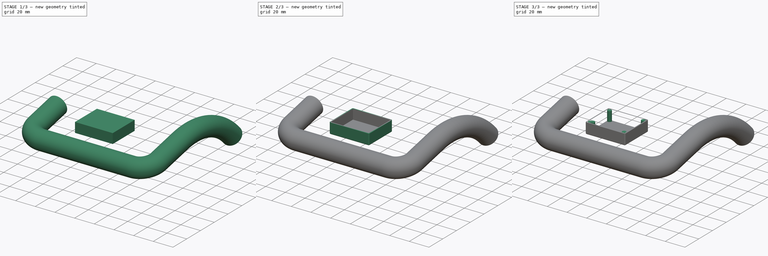
[diagram: build sequence overview — one tinted view per stage of 3, left to right]
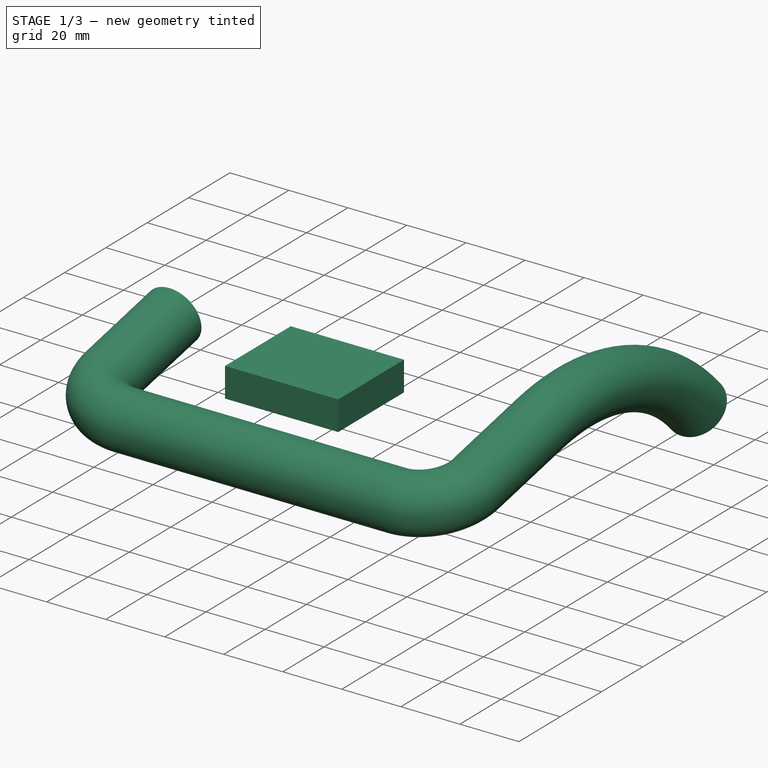
[diagram: stage 1 of 3 — iso view after this stage's code; geometry added in this stage tinted green]
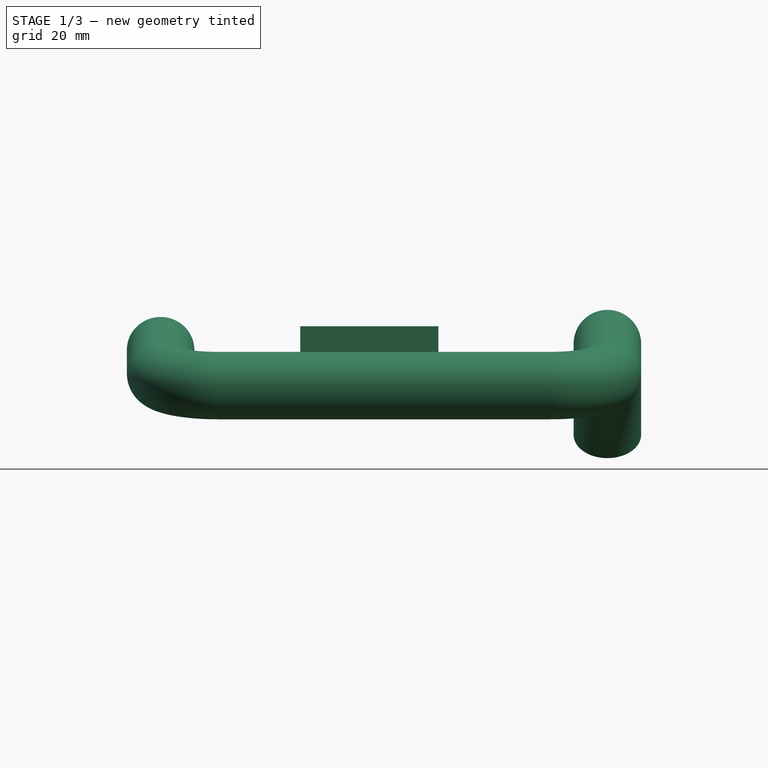
[diagram: stage 1 of 3 — front view after this stage's code; geometry added in this stage tinted green]
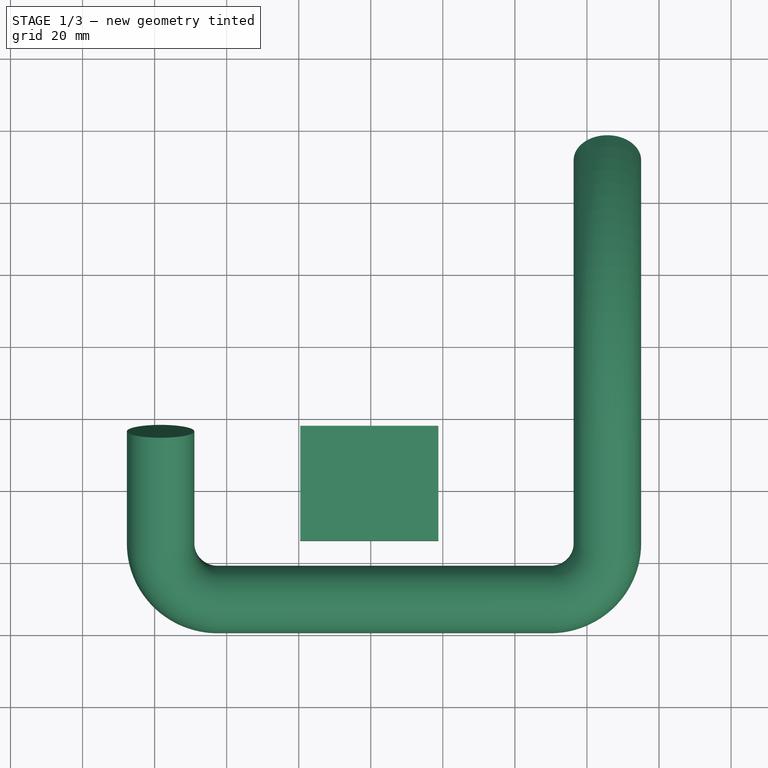
[diagram: stage 1 of 3 — top view after this stage's code; geometry added in this stage tinted green]
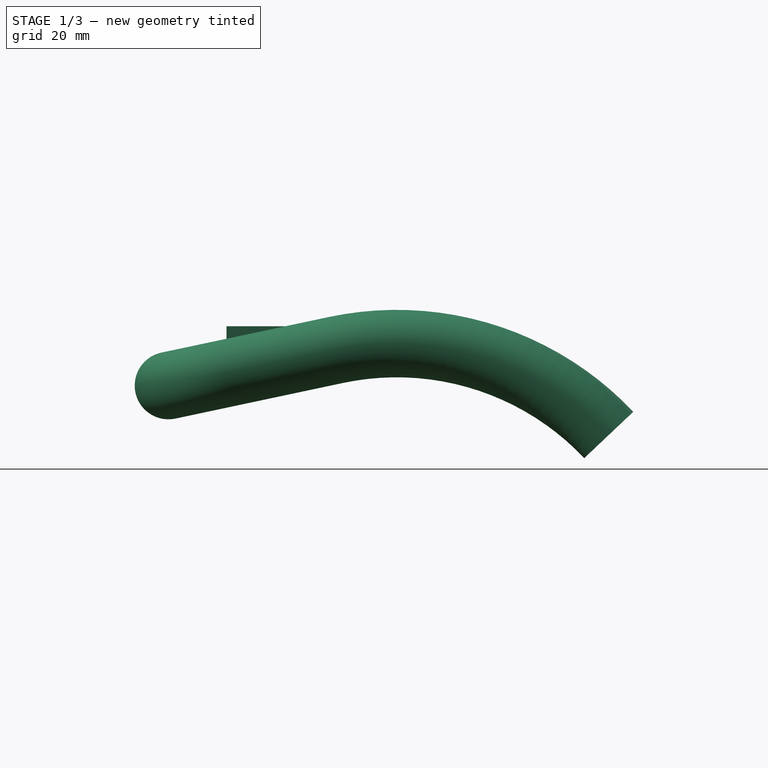
[diagram: stage 1 of 3 — right view after this stage's code; geometry added in this stage tinted green]
FCSTD DOCUMENT  (FreeCAD 0.21RUnknown)
Label: part32
License: All rights reserved
LicenseURL: http://en.wikipedia.org/wiki/All_rights_reserved
objects: Sketcher::SketchObject×6, PartDesign::Body×4, PartDesign::Pad×2, PartDesign::ShapeBinder×2, PartDesign::SubShapeBinder×2, PartDesign::Thickness×1, Part::Cylinder×1, PartDesign::AdditivePipe×1
note: 23 computed .brp shape members not serialized (recipe doc carries the construction recipe); baked Part::Feature solids carry a one-line shape summary decoded from their .brp

FEATURE [Sketcher::SketchObject] Sketch
  FullyConstrained = false
  MapMode = 5
  Support = -> [XY_Plane]
  sketch-geometry (4):
    g0: LineSegment StartX=-19.5918 StartY=17.551 StartZ=0 EndX=18.7755 EndY=17.551 EndZ=0
    g1: LineSegment StartX=18.7755 StartY=17.551 StartZ=0 EndX=18.7755 EndY=-14.2857 EndZ=0
    g2: LineSegment StartX=18.7755 StartY=-14.2857 StartZ=0 EndX=-19.5918 EndY=-14.2857 EndZ=0
    g3: LineSegment StartX=-19.5918 StartY=-14.2857 StartZ=0 EndX=-19.5918 EndY=17.551 EndZ=0
  constraints (8):
    c: Coincident(g0,g1)
    c: Coincident(g1,g2)
    c: Coincident(g2,g3)
    c: Coincident(g3,g0)
    c: Horizontal(g0)
    c: Horizontal(g2)
    c: Vertical(g1)
    c: Vertical(g3)
FEATURE [PartDesign::Pad] Pad
  Direction = (0,0,1)
  Length = 10
  Length2 = 10
  Profile = -> Sketch
  ReferenceAxis = -> Sketch [N_Axis]
  Type = 0
FEATURE [PartDesign::Body] Body
  Group = -> [Sketch,Pad,Thickness,ShapeBinder,Sketch001,Pad001]
  Origin = -> Origin
  Tip = -> Pad001
FEATURE [PartDesign::ShapeBinder] ShapeBinder001
  Support = -> [Pad001]
  TraceSupport = false
FEATURE [PartDesign::Body] Body001  label="Body001 ShapeBinder"
  Group = -> [ShapeBinder001]
  Origin = -> Origin001
FEATURE [PartDesign::SubShapeBinder] Binder
  BindCopyOnChange = 0
  BindMode = 2
  ClaimChildren = false
  Context = -> Body002 [Binder.]
  Fuse = false
  MakeFace = true
  OffsetFill = false
  OffsetIntersection = false
  OffsetJoinType = 0
  OffsetOpenResult = false
  PartialLoad = false
  Relative = true
  _Version = 2
FEATURE [Sketcher::SketchObject] Sketch002
  FullyConstrained = false
  MapMode = 5
  Support = -> [XY_Plane002]
  sketch-geometry (7):
    g0: LineSegment StartX=22.6005 StartY=-12.8738 StartZ=0 EndX=22.4493 EndY=13.1357 EndZ=0
    g1: LineSegment StartX=22.4493 StartY=13.1357 StartZ=0 EndX=-0.151248 EndY=26.0095 EndZ=0
    g2: LineSegment StartX=-0.151248 StartY=26.0095 StartZ=0 EndX=-22.6005 EndY=12.8738 EndZ=0
    g3: LineSegment StartX=-22.6005 StartY=12.8738 StartZ=0 EndX=-22.4493 EndY=-13.1357 EndZ=0
    g4: LineSegment StartX=-22.4493 StartY=-13.1357 StartZ=0 EndX=0.151248 EndY=-26.0095 EndZ=0
    g5: LineSegment StartX=0.151248 StartY=-26.0095 StartZ=0 EndX=22.6005 EndY=-12.8738 EndZ=0
    g6: Circle CenterX=0 CenterY=0 CenterZ=0 NormalX=0 NormalY=0 NormalZ=1 AngleXU=0 Radius=26.0099
  constraints (14):
    c: Coincident(g0,g1)
    c: Coincident(g1,g2)
    c: Coincident(g2,g3)
    c: Coincident(g3,g4)
    c: Coincident(g4,g5)
    c: Coincident(g5,g0)
    c: Equal(g0, g1-g5) x5
    c: PointOnObject(g0,g6)
    c: PointOnObject(g1,g6)
    c: PointOnObject(g2,g6)
    c: PointOnObject(g3,g6)
    c: PointOnObject(g4,g6)
    c: PointOnObject(g5,g6)
    c: Coincident(g6,g-1)
FEATURE [PartDesign::Body] Body002  label="Body002 SubShapeBinder"
  Group = -> [Binder,Sketch002]
  Origin = -> Origin002
  Placement = pos=(69,0,0) rot=(0,0,1;0rad)
FEATURE [Sketcher::SketchObject] Sketch003
  AttachmentOffset = pos=(0,0,0) rot=(1,0,0;0.20944rad)
  FullyConstrained = false
  MapMode = 5
  Placement = pos=(0,0,0) rot=(1,0,0;0.20944rad)
  Support = -> [XY_Plane003]
  sketch-geometry (6):
    g0: LineSegment StartX=65.6774 StartY=16.4994 StartZ=0 EndX=65.6774 EndY=-15.214 EndZ=0
    g1: ArcOfCircle CenterX=49.8207 CenterY=-15.214 CenterZ=0 NormalX=0 NormalY=0 NormalZ=1 AngleXU=0 Radius=15.8567 StartAngle=4.71239 EndAngle=6.28319
    g2: LineSegment StartX=49.8207 StartY=-31.0707 StartZ=0 EndX=-42.4794 EndY=-31.0707 EndZ=0
    g3: ArcOfCircle CenterX=-42.4794 CenterY=-15.214 CenterZ=0 NormalX=0 NormalY=0 NormalZ=1 AngleXU=0 Radius=15.8567 StartAngle=3.14159 EndAngle=4.71239
    g4: LineSegment StartX=-58.3361 StartY=-15.214 StartZ=0 EndX=-58.3361 EndY=16.4994 EndZ=0
    g5: GeomPoint X=65.6774 Y=-31.0707 Z=0
  constraints (10):
    c: Tangent(g0,g1) = 1.5708
    c: Tangent(g1,g2) = 1.5708
    c: Tangent(g2,g3) = 1.5708
    c: Tangent(g3,g4) = 1.5708
    c: Horizontal(g2)
    c: Vertical(g0)
    c: Vertical(g4)
    c: Equal(g1,g3)
    c: PointOnObject(g5,g0)
    c: PointOnObject(g5,g2)
FEATURE [Sketcher::SketchObject] Sketch004
  ExternalGeometry = -> [Sketch003]
  FullyConstrained = false
  MapMode = 1
  Placement = pos=(65.6774,16.1389,3.43042) rot=(0.57735,0.57735,0.57735;2.0944rad)
  Support = -> [Sketch003]
  sketch-geometry (1):
    g0: ArcOfCircle CenterX=16.8334 CenterY=-79.195 CenterZ=0 NormalX=0 NormalY=0 NormalZ=1 AngleXU=0 Radius=80.9643 StartAngle=0.756973 EndAngle=1.78024
  constraints (2):
    c: Coincident(g0,g-1)
    c: Tangent(g0,g-3)
FEATURE [Sketcher::SketchObject] Sketch005  label="ProfileSketch"
  FullyConstrained = false
  MapMode = 7
  Placement = pos=(-58.3361,16.1389,3.43042) rot=(1,0,0;1.78024rad)
  Support = -> [Sketch003]
  sketch-geometry (1):
    g0: Circle CenterX=0 CenterY=0 CenterZ=0 NormalX=0 NormalY=0 NormalZ=1 AngleXU=0 Radius=9.36396
  constraints (1):
    c: Coincident(g0,g-1)
FEATURE [PartDesign::SubShapeBinder] Binder001
  BindCopyOnChange = 0
  BindMode = 0
  ClaimChildren = false
  Context = -> Body003 [Binder001.]
  Fuse = false
  MakeFace = true
  OffsetFill = false
  OffsetIntersection = false
  OffsetJoinType = 0
  OffsetOpenResult = false
  PartialLoad = false
  Relative = true
  Support = -> [Sketch003,Sketch004]
  _Version = 2
FEATURE [PartDesign::AdditivePipe] AdditivePipe
  AuxilleryCurvelinear = true
  AuxillerySpineTangent = false
  Binormal = (0,0,0)
  Mode = 0
  Placement = pos=(0,0,0) rot=(1,0,0;0.20944rad)
  Profile = -> Sketch005
  Spine = -> Binder001
  SpineTangent = false
  Transformation = 0
  Transition = 0
FEATURE [PartDesign::Body] Body003
  Group = -> [Sketch003,Sketch004,Sketch005,Binder001,AdditivePipe]
  Origin = -> Origin003
  Tip = -> AdditivePipe
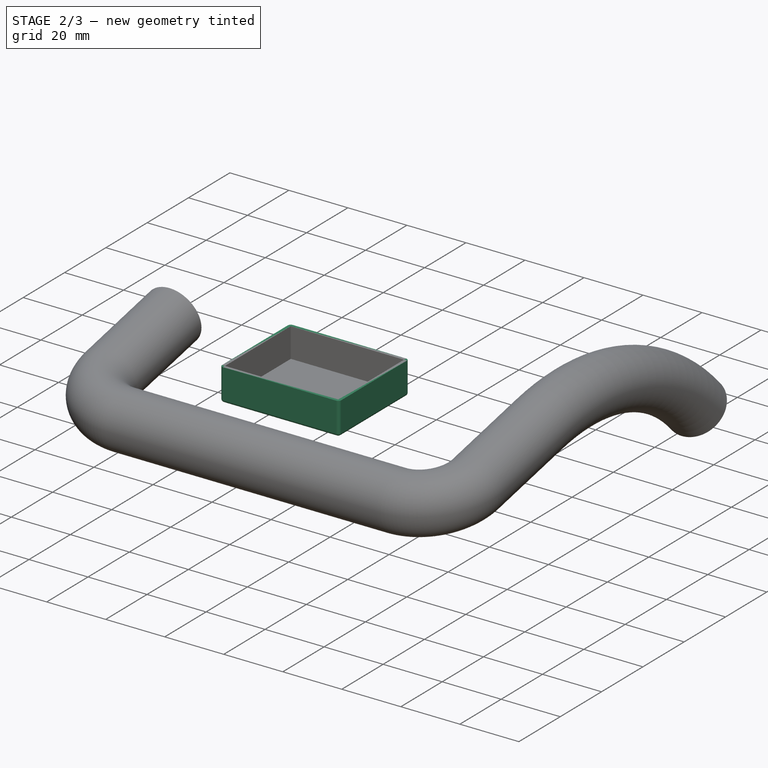
[diagram: stage 2 of 3 — iso view after this stage's code; geometry added in this stage tinted green]
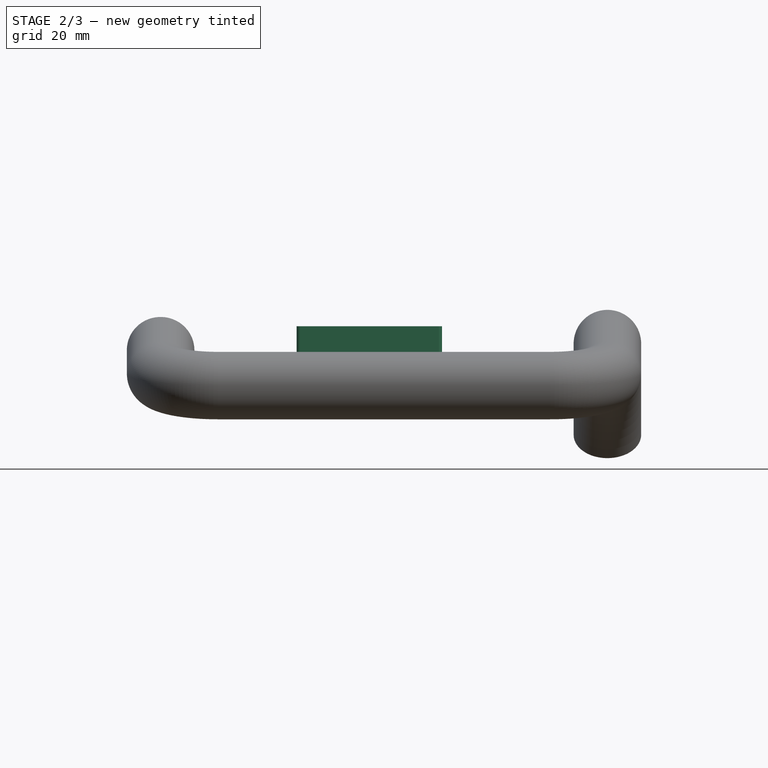
[diagram: stage 2 of 3 — front view after this stage's code; geometry added in this stage tinted green]
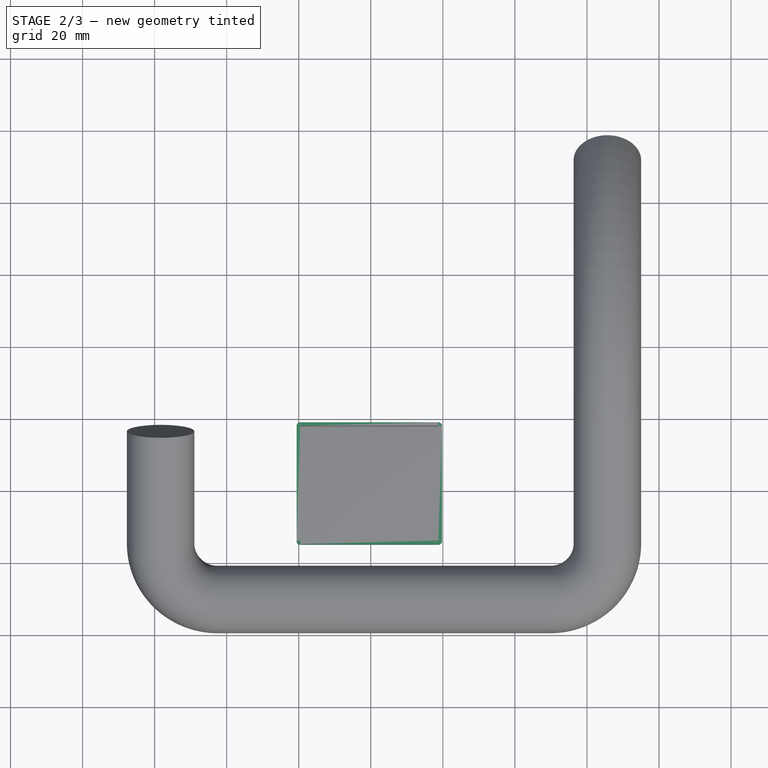
[diagram: stage 2 of 3 — top view after this stage's code; geometry added in this stage tinted green]
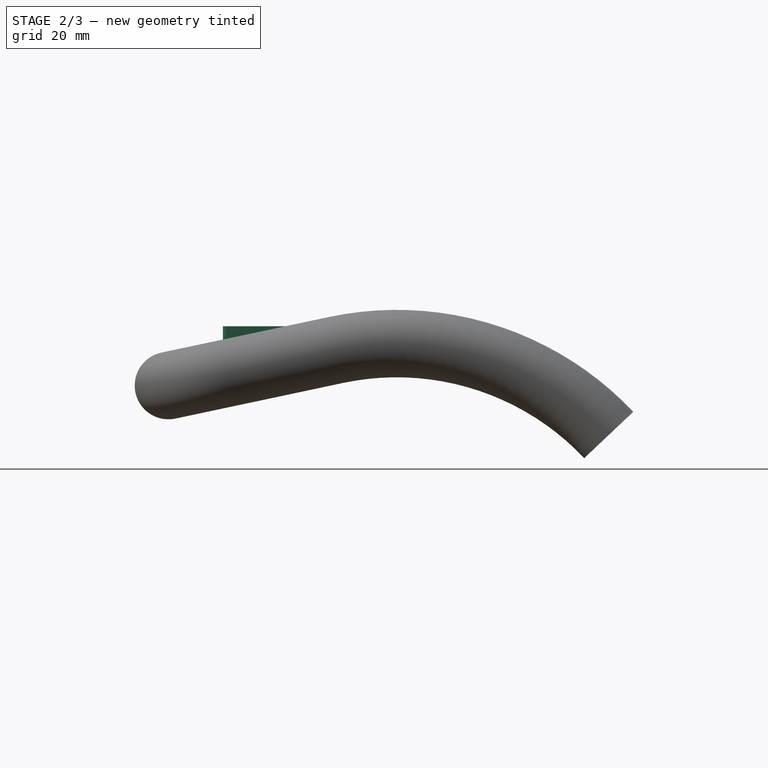
[diagram: stage 2 of 3 — right view after this stage's code; geometry added in this stage tinted green]
FEATURE [PartDesign::Thickness] Thickness
  Base = -> Pad [Face6]
  BaseFeature = -> Pad
  Intersection = false
  Join = 0
  Mode = 0
  SupportTransform = false
  Value = 1
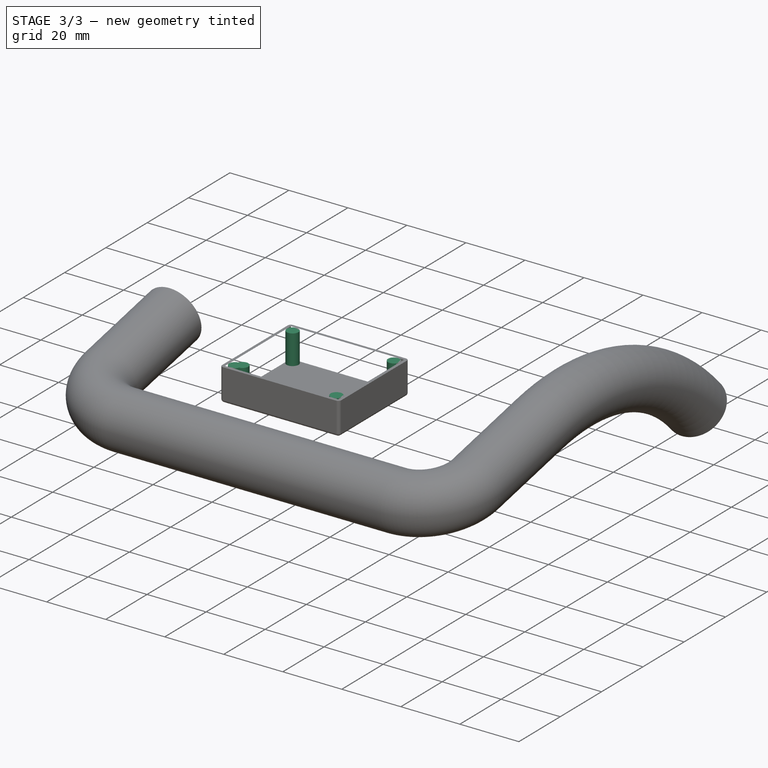
[diagram: stage 3 of 3 — iso view after this stage's code; geometry added in this stage tinted green]
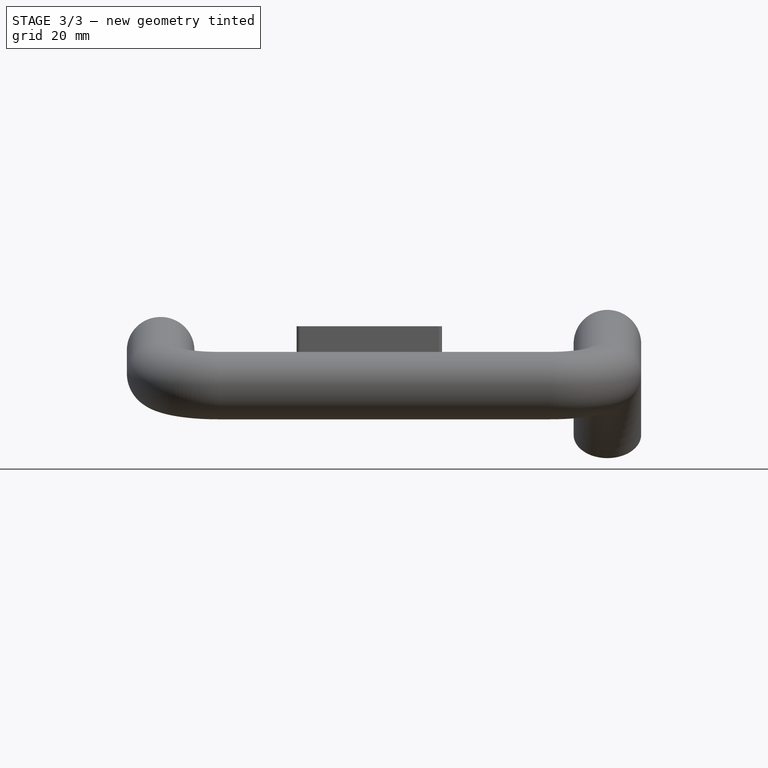
[diagram: stage 3 of 3 — front view after this stage's code; geometry added in this stage tinted green]
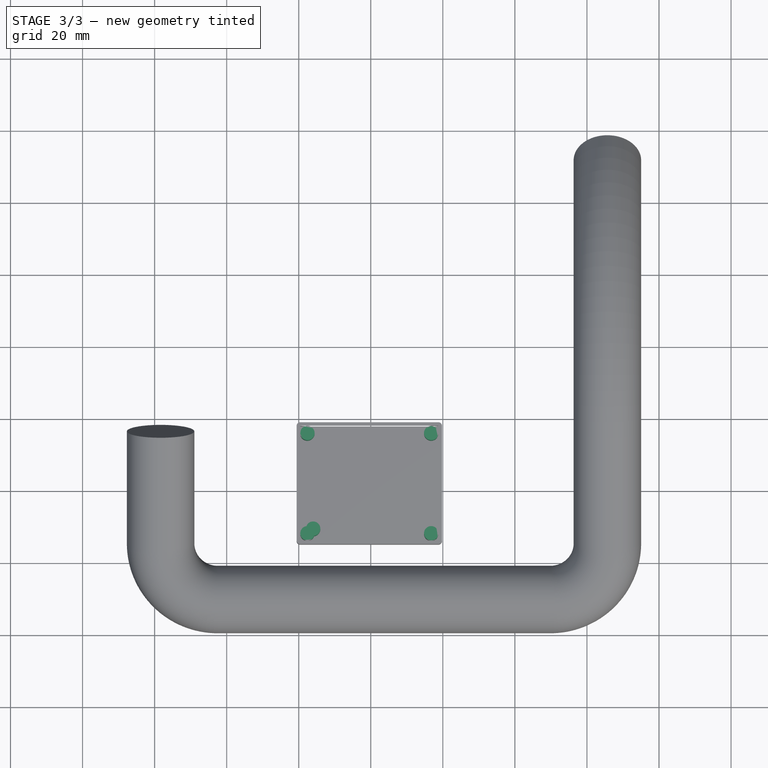
[diagram: stage 3 of 3 — top view after this stage's code; geometry added in this stage tinted green]
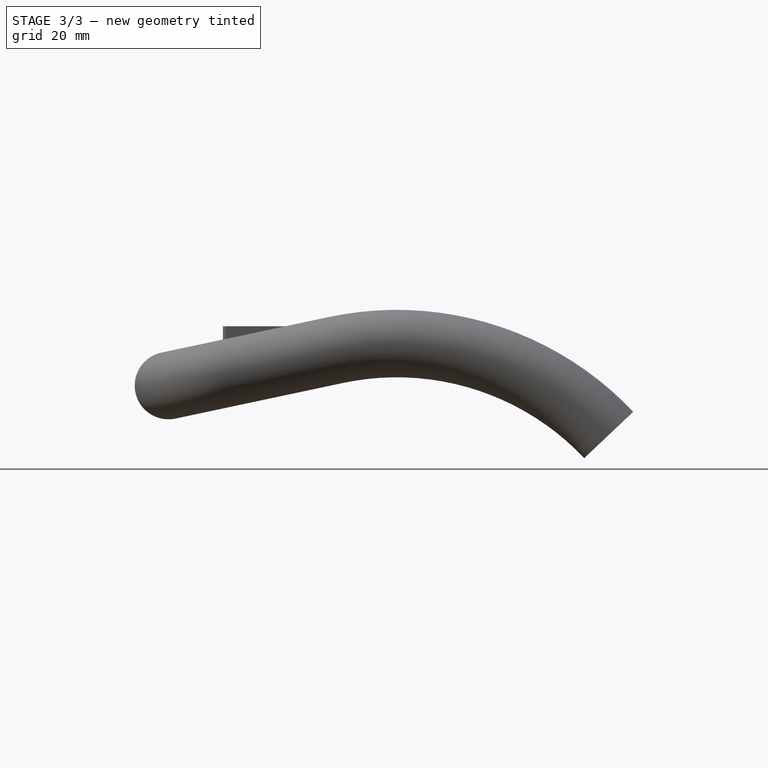
[diagram: stage 3 of 3 — right view after this stage's code; geometry added in this stage tinted green]
FEATURE [Part::Cylinder] Cylinder
  Angle = 360
  AttacherType = Attacher::AttachEngine3D
  FirstAngle = 0
  Height = 10
  Placement = pos=(-16,-11,0) rot=(0,0,1;0rad)
  Radius = 2
  SecondAngle = 0
FEATURE [PartDesign::ShapeBinder] ShapeBinder
  Placement = pos=(-16,-11,10) rot=(0,0,1;0rad)
  Support = -> [Cylinder]
  TraceSupport = false
FEATURE [Sketcher::SketchObject] Sketch001
  ExternalGeometry = -> [Thickness]
  FullyConstrained = true
  MapMode = 5
  Support = -> [Thickness]
  sketch-geometry (4):
    g0: Circle CenterX=-17.5918 CenterY=15.551 CenterZ=0 NormalX=0 NormalY=0 NormalZ=1 AngleXU=0 Radius=2
    g1: Circle CenterX=16.7755 CenterY=15.551 CenterZ=0 NormalX=0 NormalY=0 NormalZ=1 AngleXU=0 Radius=2
    g2: Circle CenterX=16.7755 CenterY=-12.2857 CenterZ=0 NormalX=0 NormalY=0 NormalZ=1 AngleXU=0 Radius=2
    g3: Circle CenterX=-17.5918 CenterY=-12.2857 CenterZ=0 NormalX=0 NormalY=0 NormalZ=1 AngleXU=0 Radius=2
  constraints (12):
    c: Tangent(g0,g-4)
    c: Tangent(g-3,g0)
    c: Tangent(g1,g-3)
    c: Tangent(g1,g-5)
    c: Tangent(g-4,g3)
    c: Tangent(g3,g-6)
    c: Tangent(g2,g-5)
    c: Tangent(g2,g-6)
    c: Equal(g0,g3)
    c: Equal(g3,g2)
    c: Equal(g2,g1)
    c: Radius(g0) = 2
FEATURE [PartDesign::Pad] Pad001
  BaseFeature = -> Thickness
  Direction = (0,0,1)
  Length = 10
  Length2 = 10
  Profile = -> Sketch001
  ReferenceAxis = -> Sketch001 [N_Axis]
  Type = 0
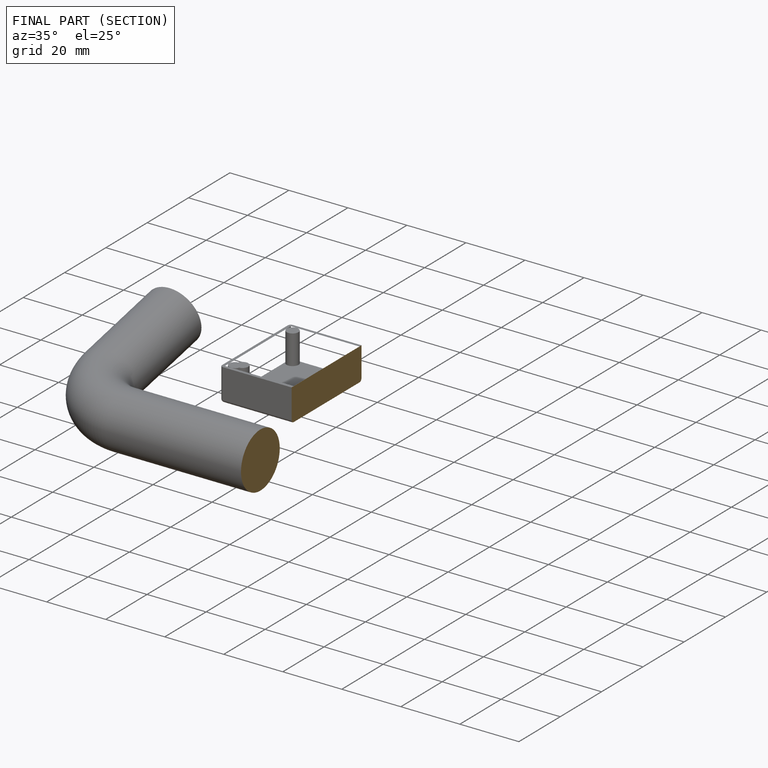
[diagram: finished part — half-section view (interior)]
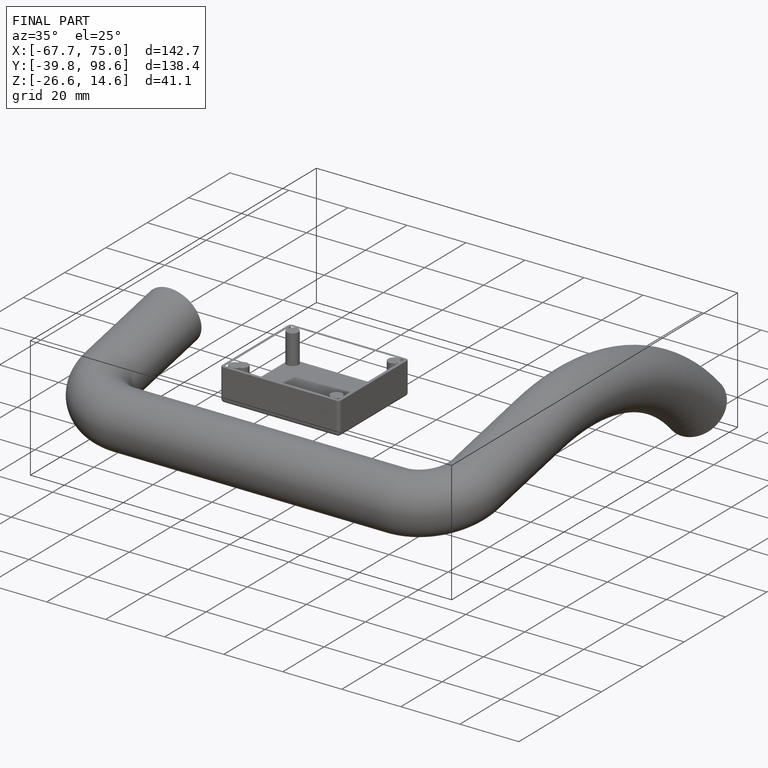
[diagram: finished part — iso view with bounding-box wireframe]
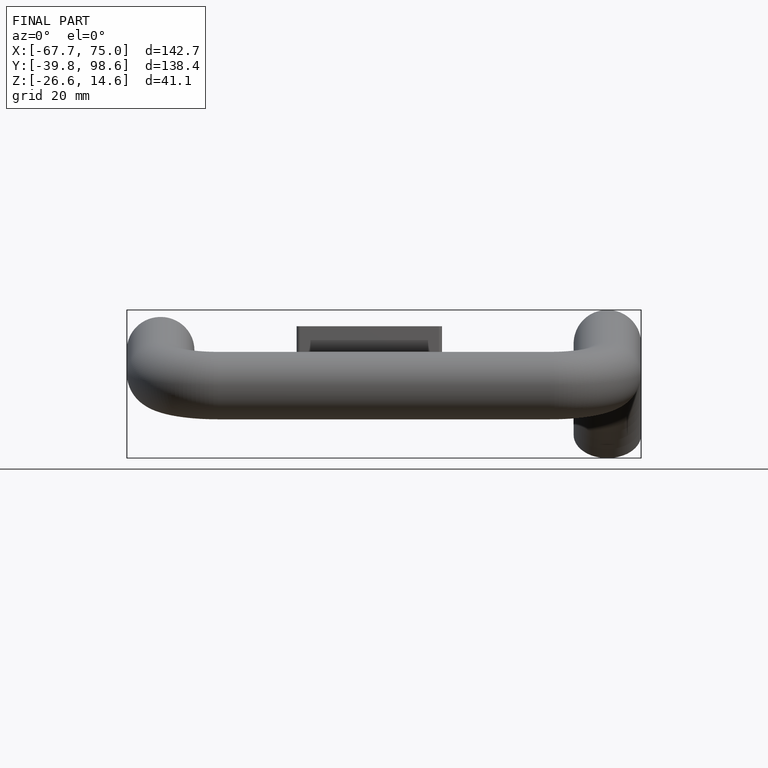
[diagram: finished part — front view with bounding-box wireframe]
